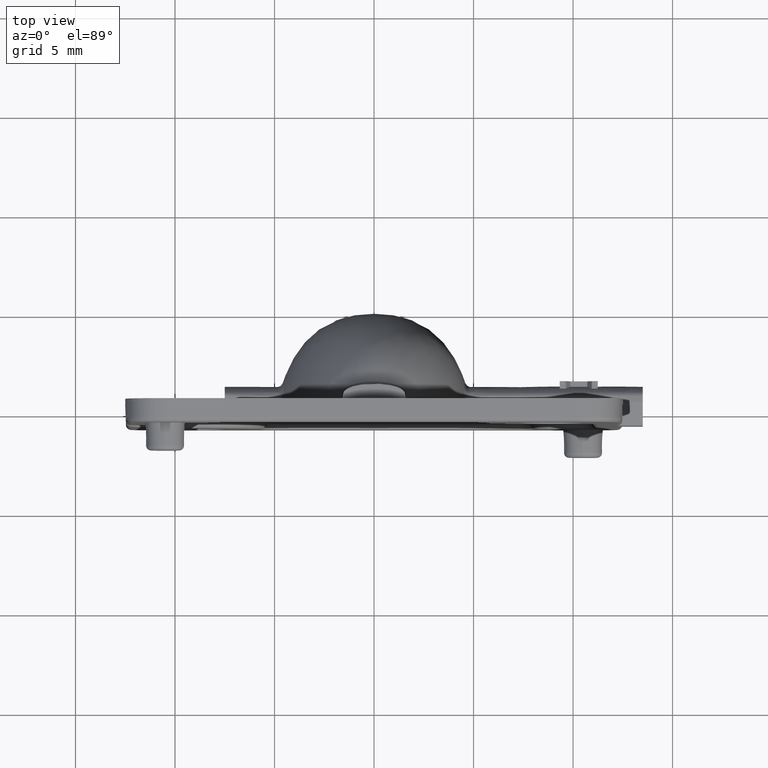
[diagram: clean part render]
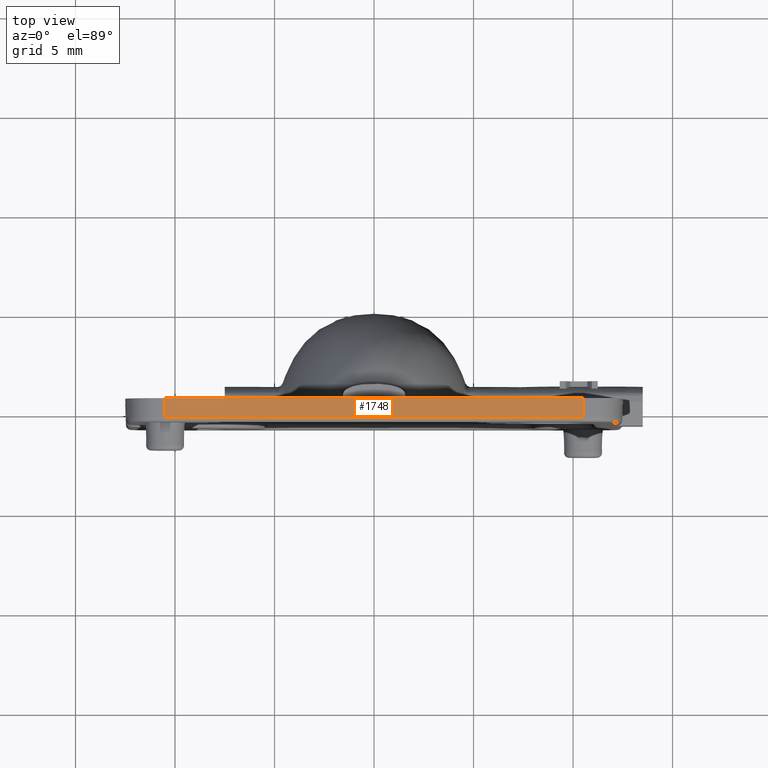
[diagram: same view with one face highlighted and labeled with its STEP entity id]
A machine part, top view. The second image highlights one B-rep face of the part: STEP entity #1748.
In plain terms, the highlighted planar face has unit normal (0, -0.0349, 0.9994).
Its self-contained STEP definition (entity closure, byte-faithful):
#112 = CARTESIAN_POINT ( 'NONE',  ( -10.50000000000000200, -0.4587248741756251900, 12.46652058966291100 ) ) ;
#145 = VERTEX_POINT ( 'NONE', #4156 ) ;
#157 = EDGE_CURVE ( 'NONE', #3036, #5737, #4016, .T. ) ;
#418 = CARTESIAN_POINT ( 'NONE',  ( -10.50000000000000200, 0.4999999999999998900, 12.50000000000000400 ) ) ;
#1115 = VECTOR ( 'NONE', #4750, 1000.000000000000200 ) ;
#1340 = DIRECTION ( 'NONE',  ( 0.0000000000000000000, -0.9993908270190956500, -0.03489949670250104600 ) ) ;
#1748 = ADVANCED_FACE ( 'NONE', ( #5940 ), #6388, .T. ) ;
#1934 = LINE ( 'NONE', #4066, #3468 ) ;
#1966 = CARTESIAN_POINT ( 'NONE',  ( -10.50000000000000200, 0.4999999999999998900, 12.50000000000000400 ) ) ;
#2477 = VECTOR ( 'NONE', #3635, 1000.000000000000000 ) ;
#2832 = VERTEX_POINT ( 'NONE', #5184 ) ;
#3036 = VERTEX_POINT ( 'NONE', #418 ) ;
#3218 = EDGE_CURVE ( 'NONE', #3036, #145, #5365, .T. ) ;
#3468 = VECTOR ( 'NONE', #7359, 1000.000000000000200 ) ;
#3520 = EDGE_LOOP ( 'NONE', ( #4513, #4336, #5040, #5286 ) ) ;
#3635 = DIRECTION ( 'NONE',  ( 1.000000000000000000, 0.0000000000000000000, -4.130293990420969400E-016 ) ) ;
#3833 = EDGE_CURVE ( 'NONE', #145, #2832, #1934, .T. ) ;
#3981 = LINE ( 'NONE', #112, #2477 ) ;
#4016 = LINE ( 'NONE', #4785, #1115 ) ;
#4066 = CARTESIAN_POINT ( 'NONE',  ( 10.49999999999999800, 0.4999999999999997800, 12.49999999999999600 ) ) ;
#4090 = AXIS2_PLACEMENT_3D ( 'NONE', #6922, #4769, #1340 ) ;
#4156 = CARTESIAN_POINT ( 'NONE',  ( 10.49999999999999800, 0.4999999999999998900, 12.49999999999999500 ) ) ;
#4336 = ORIENTED_EDGE ( 'NONE', *, *, #5314, .T. ) ;
#4474 = CARTESIAN_POINT ( 'NONE',  ( -10.50000000000000200, -0.4587248741756250700, 12.46652058966291100 ) ) ;
#4513 = ORIENTED_EDGE ( 'NONE', *, *, #157, .T. ) ;
#4750 = DIRECTION ( 'NONE',  ( -1.441451814990565100E-017, -0.9993908270190956500, -0.03489949670250103900 ) ) ;
#4769 = DIRECTION ( 'NONE',  ( 4.127777926918813700E-016, -0.03489949670250105200, 0.9993908270190957600 ) ) ;
#4784 = DIRECTION ( 'NONE',  ( 1.000000000000000000, 0.0000000000000000000, -4.130293990420969900E-016 ) ) ;
#4785 = CARTESIAN_POINT ( 'NONE',  ( -10.50000000000000200, 0.4999999999999998900, 12.50000000000000400 ) ) ;
#5040 = ORIENTED_EDGE ( 'NONE', *, *, #3833, .F. ) ;
#5184 = CARTESIAN_POINT ( 'NONE',  ( 10.49999999999999800, -0.4587248741756251900, 12.46652058966290600 ) ) ;
#5286 = ORIENTED_EDGE ( 'NONE', *, *, #3218, .F. ) ;
#5314 = EDGE_CURVE ( 'NONE', #5737, #2832, #3981, .T. ) ;
#5365 = LINE ( 'NONE', #1966, #6633 ) ;
#5737 = VERTEX_POINT ( 'NONE', #4474 ) ;
#5940 = FACE_OUTER_BOUND ( 'NONE', #3520, .T. ) ;
#6388 = PLANE ( 'NONE',  #4090 ) ;
#6633 = VECTOR ( 'NONE', #4784, 1000.000000000000000 ) ;
#6922 = CARTESIAN_POINT ( 'NONE',  ( -10.50000000000000200, 0.4999999999999998900, 12.50000000000000400 ) ) ;
#7359 = DIRECTION ( 'NONE',  ( -3.027048811480189700E-017, -0.9993908270190956500, -0.03489949670250104600 ) ) ;